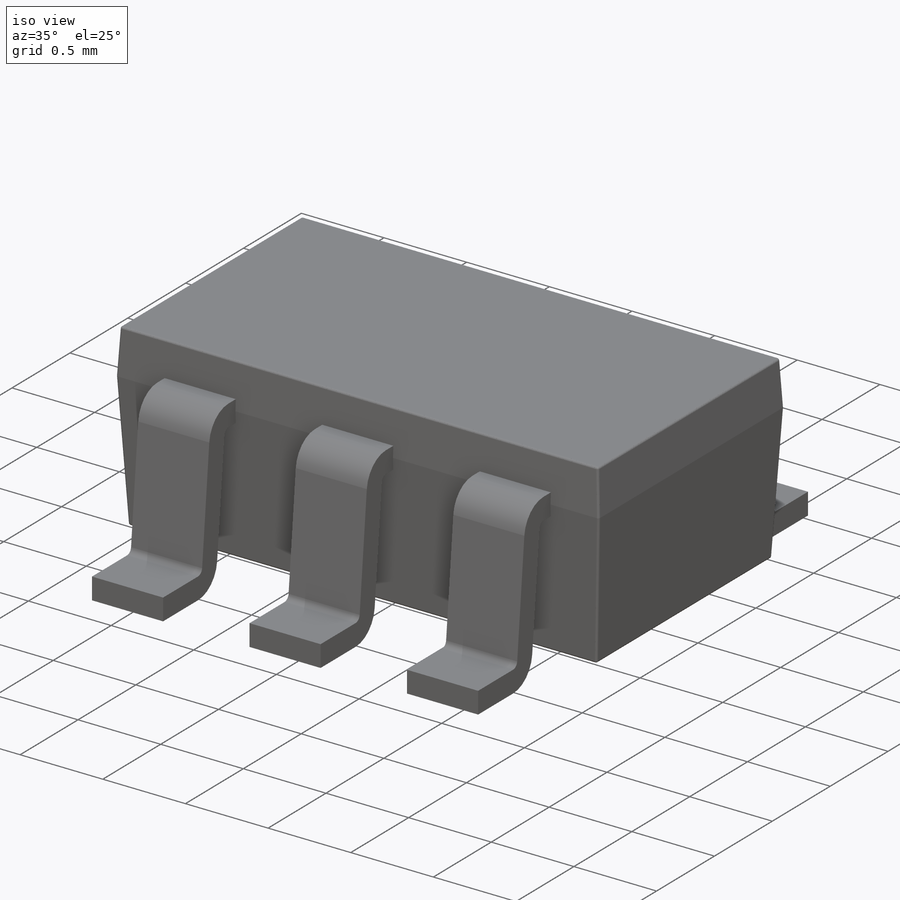
[diagram: iso view]
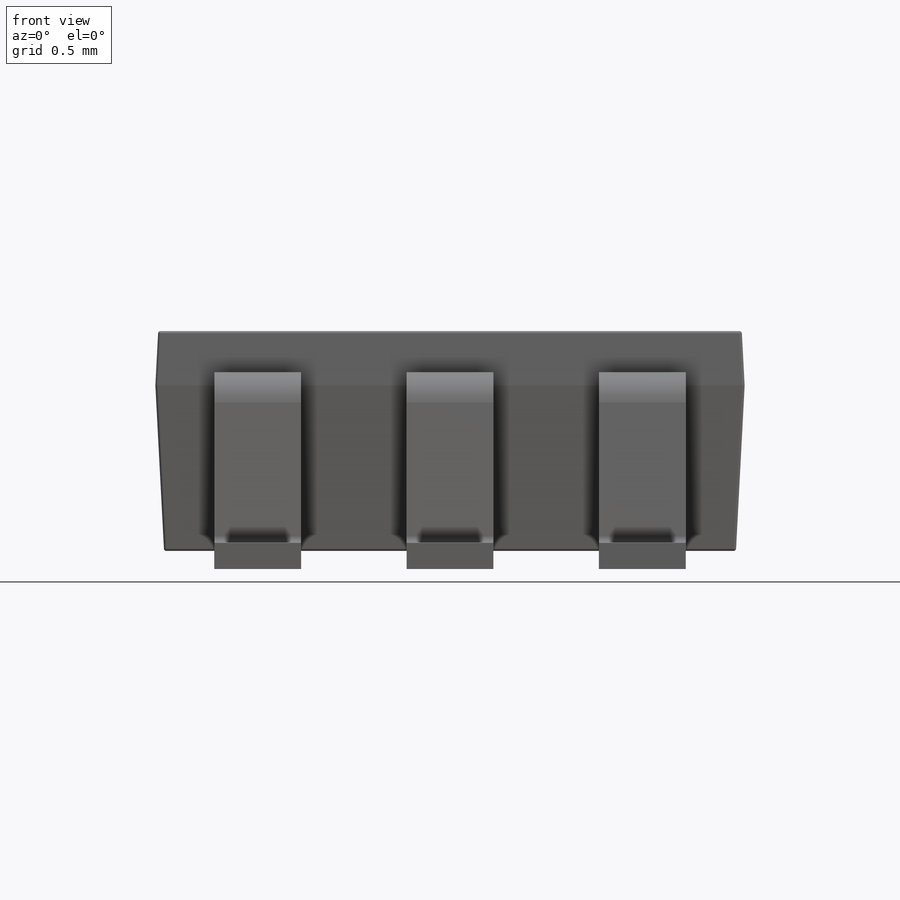
[diagram: front view]
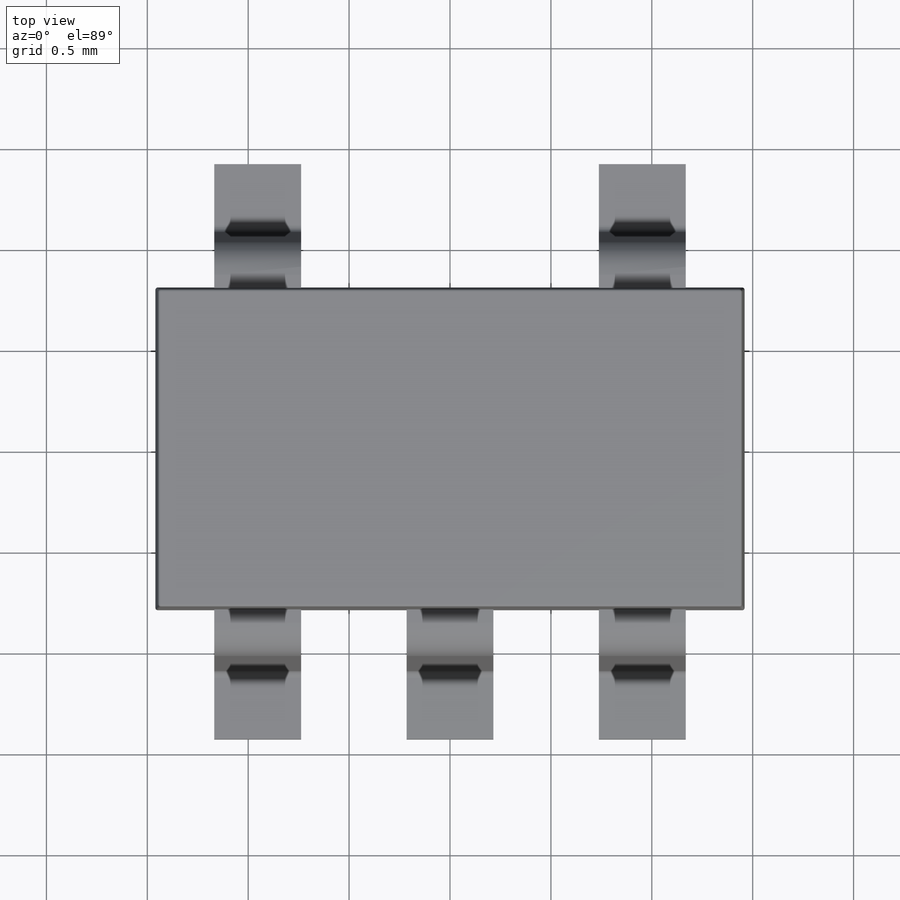
[diagram: top view]
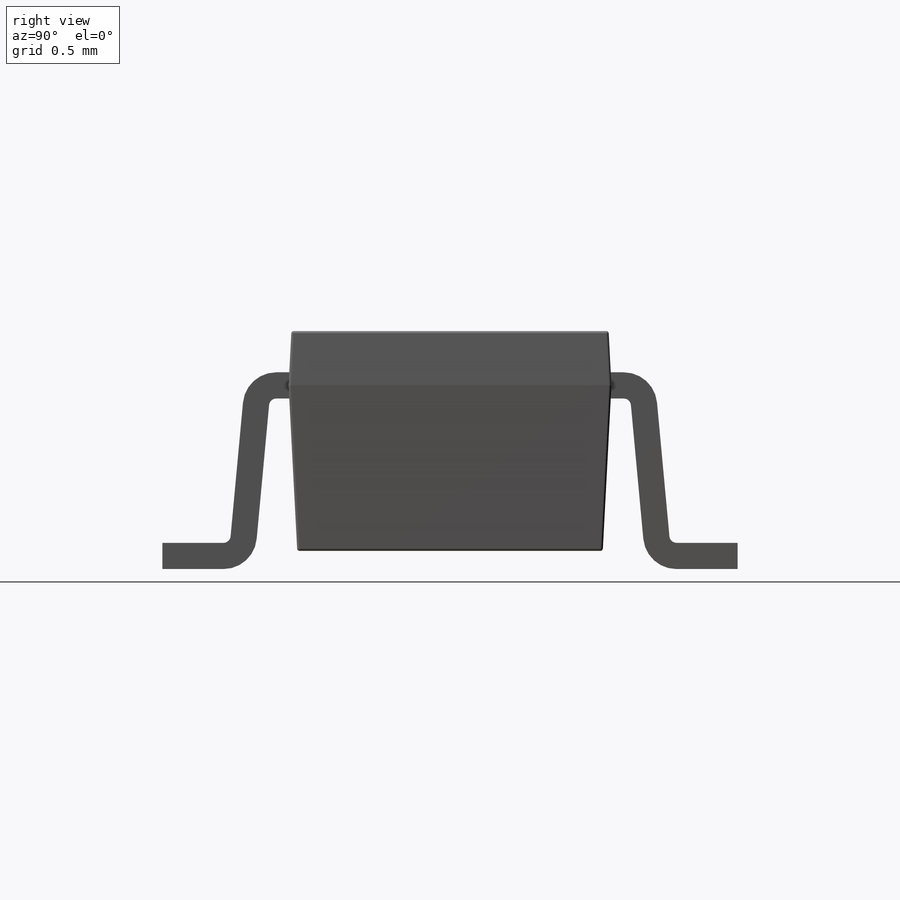
[diagram: right view]
SOLIDWORKS PART (.sldprt)
format: sldprt  version: not decoded by parser v0  size: 339,456 bytes
history: native  units: mm
features: sketch x3, plane x2, pattern_linear x2, material x1, extrude x1, fillet x1, sweep x1, mirror x1 (+12 scaffold rows collapsed)
feature tree (24):
  scaffold x12  (default folders/planes/origin — collapsed)
  material  "Material <not specified>"
  sketch  "Sketch1"  dims[D1=2.92mm D2=1.6mm]
  extrude  "Extrude1"  Depth=0.27mm
  fillet  "Fillet1"  Radius=0.0125mm
  plane  "Plane1"  Offset=0.953mm
  sketch  "Sketch3"  dims[c1.D4=0.1mm c1.D1=0.025mm c1.D2=0.65mm c1.D3=0.75mm c1.D5=~0.111557mm c1.D6=~0.061526mm c1.D7=~0.277771mm c2.D2=1.425mm]
  plane  "Plane2"
  sketch  "Sketch4"  dims[D1=~0.023958mm D2=0.13mm D3=0.43mm]
  sweep  "Sweep2"
  mirror  "Espelhar2"
  pattern_linear  "Padrão linear1"  Count1=3 Count2=1 Spacing1=0.953mm Spacing2=10mm
  pattern_linear  "Padrão linear2"  Count1=2 Count2=1 Spacing1=1.906mm Spacing2=10mm
decode coverage: 7 of 9 modeling features carry decoded parameters
note: ~ marks probable driven/reference dimensions
note: suppression state not decoded; provenance and decode notes live in map.json
